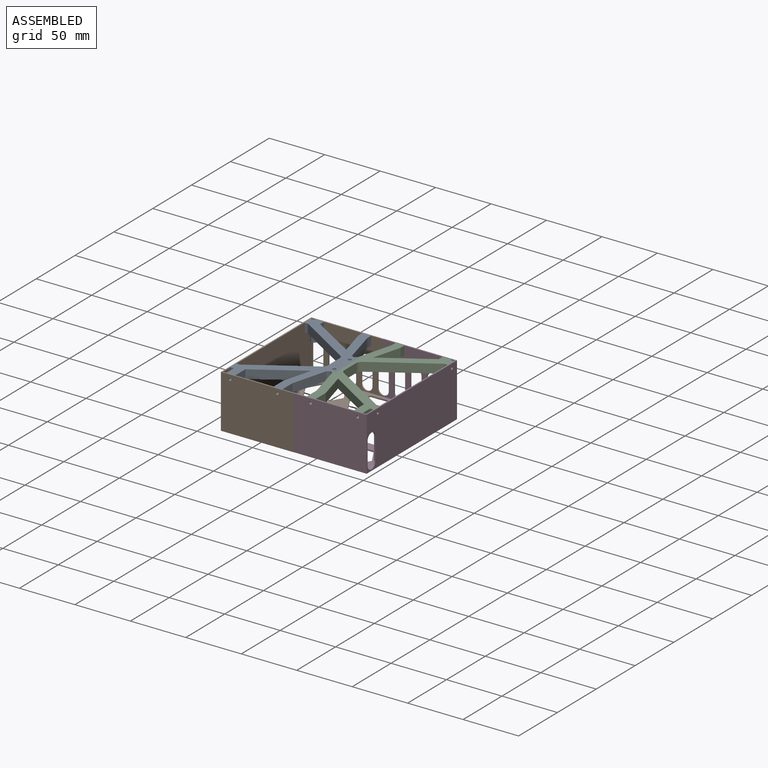
[diagram: assembled view]
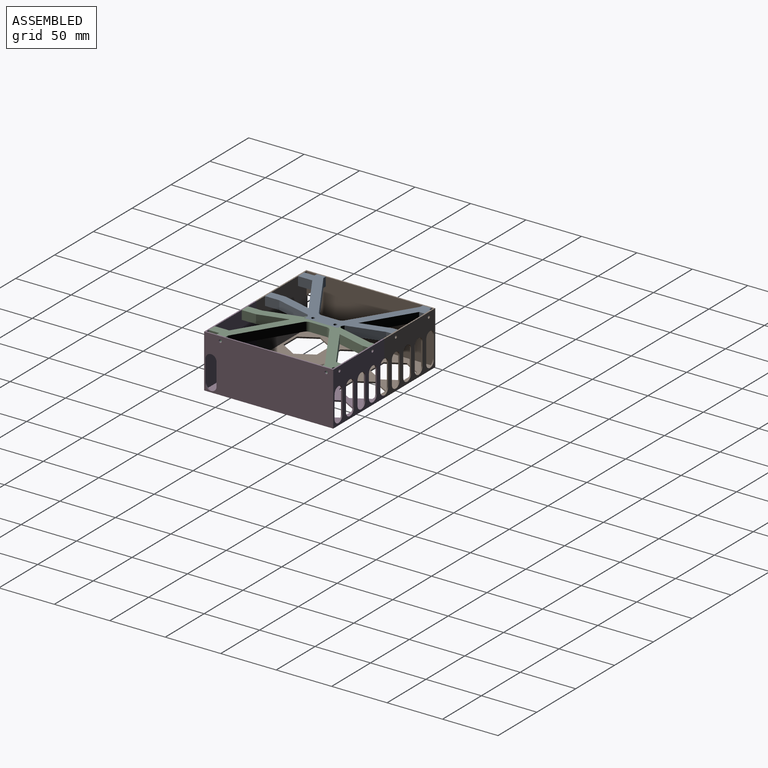
[diagram: assembled view, second angle]
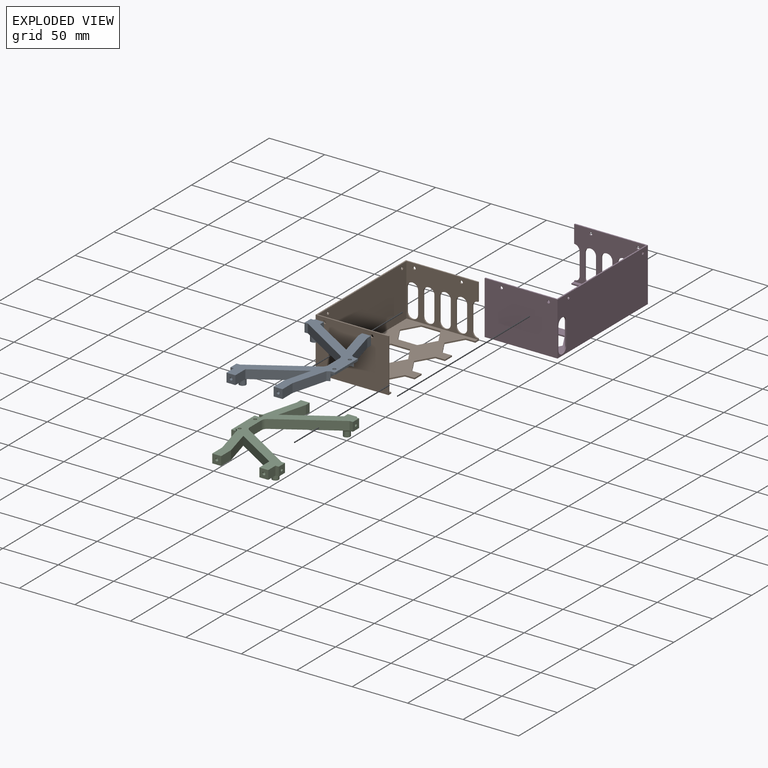
[diagram: exploded view]
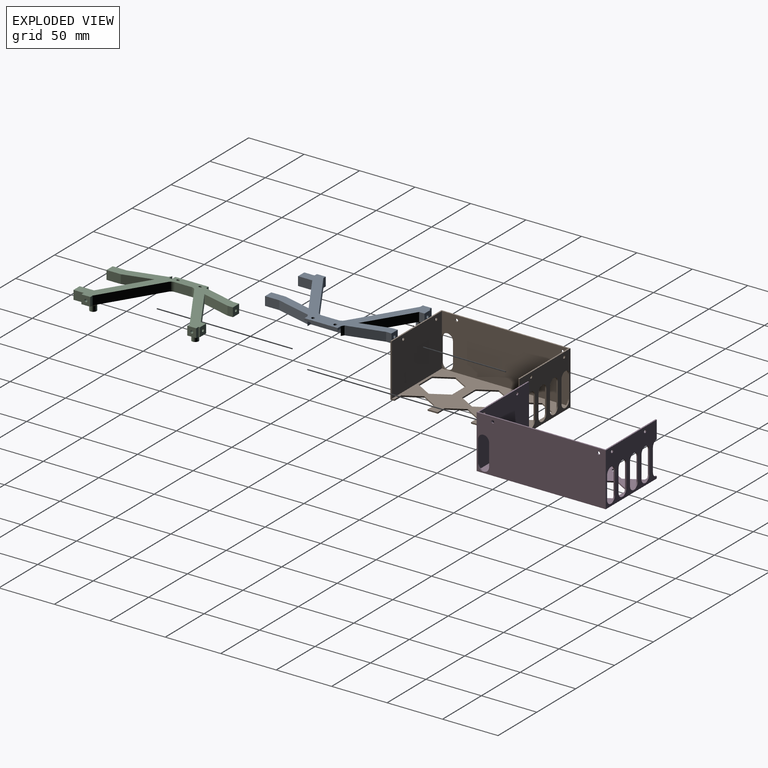
[diagram: exploded view, second angle]
ASSEMBLY  parts=4 mates=9
PART A: 69 faces, bbox 68.6x14.1x114.1 mm
  f0: cylinder r=1.3mm len=10mm, axis (0,-1,0), area 75.8mm2, adj f1,f2,f10,f62,f63,f64
  f1: cylinder r=1.3mm len=7mm, axis (1,0,0), area 51.6mm2, adj f0,f37,f60,f62,f63,f64
  f2: cylinder r=1.3mm len=3mm, axis (1,0,0), area 18.2mm2, adj f0,f59,f60,f62,f64
  f3: cone r=0mm half-angle=59deg, axis (0,-1,0), area 4.5mm2, adj f4,f56
  f4: cylinder r=1.3mm len=10mm, axis (0,-1,0), area 78.4mm2, adj f3,f12,f56
  f5: plane 30x8mm, normal (0,-1,0), area 225.9mm2, adj f7,f17,f49,f50,f51,f52,f53,f54
  f6: plane 114x68.5mm, normal (0,1,0), area 2133.5mm2, adj f7,f13,f14,f15,f16,f17,f18,f19
  f7: plane 4x2mm, normal (0,0,-1), area 8mm2, adj f5,f6,f18,f52
  f8: plane 114x64.5mm, normal (0,-1,0), area 1782.8mm2, adj f13,f14,f15,f16,f18,f19,f20,f21
  f9: cylinder r=3mm len=6mm, axis (0,1,0), area 84.8mm2, adj f10,f47,f48
  f10: plane 6x6mm, normal (0,-1,0), area 23mm2, adj f0,f9
  f11: cylinder r=3mm len=6mm, axis (0,1,0), area 84.8mm2, adj f12,f45,f46
  f12: plane 6x6mm, normal (0,-1,0), area 23mm2, adj f4,f11
  f13: plane 8x8mm, normal (0,0,1), area 58.7mm2, adj f6,f8,f14,f44,f66
  f14: plane 8x4.83mm, normal (-1,0,0), area 38.6mm2, adj f6,f8,f13,f15
  f15: plane 31.59x8.46mm, normal (-0.97,0,0.26), area 261.6mm2, adj f6,f8,f14,f16
  f16: plane 8x2.55mm, normal (-0.53,0,0.85), area 24mm2, adj f6,f8,f15,f17,f49
  f17: plane 4x2mm, normal (0,0,1), area 8mm2, adj f5,f6,f16,f52
  f18: plane 8x2.55mm, normal (-0.53,0,-0.85), area 24mm2, adj f6,f7,f8,f19,f50
  f19: plane 31.59x8.46mm, normal (-0.97,0,-0.26), area 261.6mm2, adj f6,f8,f18,f20
  f20: plane 12.83x8mm, normal (-1,0,0), area 102.6mm2, adj f6,f8,f19,f21
  f21: plane 8x8mm, normal (0,0,-1), area 58.7mm2, adj f6,f8,f20,f22,f58
  f22: plane 12.83x8mm, normal (1,0,0), area 102.6mm2, adj f6,f8,f21,f23
  f23: plane 25.64x8mm, normal (0.97,0,0.26), area 212.4mm2, adj f6,f8,f22,f24
  f24: plane 41.36x25.64mm, normal (-0.53,0,-0.85), area 389.3mm2, adj f6,f8,f23,f25
  f25: plane 12.83x8mm, normal (-1,0,0), area 102.6mm2, adj f6,f8,f24,f26
  f26: plane 8x8mm, normal (0,0,-1), area 58.7mm2, adj f6,f8,f25,f27,f68
  f27: plane 9.28x8mm, normal (1,0,0), area 74.3mm2, adj f6,f8,f26,f28
  f28: plane 8x3mm, normal (0,0,-1), area 24mm2, adj f6,f8,f27,f29
  f29: plane 8x8mm, normal (1,0,0), area 58.7mm2, adj f6,f8,f28,f30,f56
  f30: plane 8x3mm, normal (0,0,1), area 24mm2, adj f6,f8,f29,f31
  f31: plane 51.69x32.07mm, normal (0.53,0,0.85), area 486mm2, adj f6,f8,f30,f32,f46
  f32: cylinder r=5mm len=8mm, axis (0,1,0), area 40.6mm2, adj f6,f8,f31,f33
  f33: plane 14.91x8mm, normal (1,0,0), area 119.3mm2, adj f6,f8,f32,f34
  f34: cylinder r=5mm len=8mm, axis (0,1,0), area 40.6mm2, adj f6,f8,f33,f35
  f35: plane 51.69x32.07mm, normal (0.53,0,-0.85), area 486mm2, adj f6,f8,f34,f36,f48
  f36: plane 8x3mm, normal (0,0,-1), area 24mm2, adj f6,f8,f35,f37
  f37: plane 8x8mm, normal (1,0,0), area 58.7mm2, adj f1,f6,f8,f36,f38
  f38: plane 8x3mm, normal (0,0,1), area 24mm2, adj f6,f8,f37,f39
  f39: plane 8x1.28mm, normal (1,0,0), area 10.3mm2, adj f6,f8,f38,f40
  f40: plane 8x8mm, normal (0,0,1), area 58.7mm2, adj f6,f8,f39,f41,f60
  f41: plane 8x4.83mm, normal (-1,0,0), area 38.6mm2, adj f6,f8,f40,f42
  f42: plane 41.36x25.64mm, normal (-0.53,0,0.85), area 389.3mm2, adj f6,f8,f41,f43
  f43: plane 25.64x8mm, normal (0.97,0,-0.26), area 212.4mm2, adj f6,f8,f42,f44
  f44: plane 8x4.83mm, normal (1,0,0), area 38.6mm2, adj f6,f8,f13,f43
  f45: torus R=4.5mm, axis (0,-1,0), area 44.9mm2, adj f8,f11,f46
  f46: bspline ~4.19x3.38mm, area 6.3mm2, adj f11,f31,f45
  f47: torus R=4.5mm, axis (0,-1,0), area 44.9mm2, adj f8,f9,f48
  f48: bspline ~3.5x2.87mm, area 6.3mm2, adj f9,f35,f47
  f49: plane 6x4mm, normal (0,0,-1), area 24mm2, adj f5,f8,f16,f51
  f50: plane 6x4mm, normal (0,0,1), area 24mm2, adj f5,f8,f18,f51
  f51: plane 30x6mm, normal (-1,0,0), area 180mm2, adj f5,f8,f49,f50
  f52: plane 30x2mm, normal (-1,0,0), area 60mm2, adj f5,f6,f7,f17
  f53: cylinder r=1.5mm len=3mm, axis (0,-1,0), area 18.8mm2, adj f5,f6
  f54: cylinder r=1.5mm len=3mm, axis (0,-1,0), area 18.8mm2, adj f5,f6
  f55: cone r=0mm half-angle=59deg, axis (1,0,0), area 6.2mm2, adj f56
  f56: cylinder r=1.3mm len=10mm, axis (1,0,0), area 77.8mm2, adj f3,f4,f29,f55
  f57: cone r=0mm half-angle=59deg, axis (0,0,-1), area 6.2mm2, adj f58
  f58: cylinder r=1.3mm len=10mm, axis (0,0,-1), area 81.7mm2, adj f21,f57
  f59: cone r=0mm half-angle=59deg, axis (1,0,0), area 6.2mm2, adj f2
  f60: cylinder r=1.3mm len=5.28mm, axis (0,0,1), area 37.1mm2, adj f1,f2,f40
  f61: cone r=0mm half-angle=59deg, axis (0,0,1), area 6.2mm2, adj f62
  f62: cylinder r=1.3mm len=4.72mm, axis (0,0,1), area 24.9mm2, adj f0,f1,f2,f61,f63
  f63: cylinder r=1.3mm len=0.53mm, axis (0,0,1), area 0.1mm2, adj f0,f1,f62
  f64: cylinder r=1.3mm len=1.06mm, axis (0,0,1), area 0.3mm2, adj f0,f1,f2
  f65: cone r=0mm half-angle=59deg, axis (0,0,1), area 6.2mm2, adj f66
  f66: cylinder r=1.3mm len=10mm, axis (0,0,1), area 81.7mm2, adj f13,f65
  f67: cone r=0mm half-angle=59deg, axis (0,0,-1), area 6.2mm2, adj f68
  f68: cylinder r=1.3mm len=10mm, axis (0,0,-1), area 81.7mm2, adj f26,f67
PART B: 73 faces, bbox 65.7x48x116.4 mm
  f0: plane 4.67x2mm, normal (-1,0,0), area 6.6mm2, adj f1,f2,f9,f10,f31,f52
  f1: plane 64.5x46.8mm, normal (0,0,-1), area 1754.6mm2, adj f0,f3,f5,f9,f14,f48,f49,f50
  f2: plane 65.7x48mm, normal (0,0,1), area 1889.6mm2, adj f0,f4,f5,f10,f14,f48,f49,f50
  f3: plane 114x46.8mm, normal (-1,0,0), area 5040.7mm2, adj f1,f9,f11,f14,f45,f46,f47,f67
  f4: plane 116.4x48mm, normal (1,0,0), area 5298mm2, adj f2,f10,f11,f13,f14,f45,f46,f47
  f5: plane 16x1.2mm, normal (-1,0,0), area 19.2mm2, adj f1,f2,f14,f54
  f6: plane 9.08x1.2mm, normal (-1,0,0), area 10.9mm2, adj f9,f10,f28,f32
  f7: plane 9.08x1.2mm, normal (-1,0,0), area 10.9mm2, adj f9,f10,f24,f27
  f8: plane 48x3.58mm, normal (-1,0,0), area 60.4mm2, adj f9,f10,f11,f13,f14,f23
  f9: plane 114x64.5mm, normal (0,1,0), area 3845.6mm2, adj f0,f1,f3,f6,f7,f8,f11,f12
  f10: plane 116.4x65.7mm, normal (0,-1,0), area 4140.1mm2, adj f0,f2,f4,f6,f7,f8,f13,f15
  f11: plane 65.7x46.8mm, normal (0,0,1), area 3032mm2, adj f3,f4,f8,f9,f12,f14,f45,f47
  f12: plane 5x5mm, normal (-1,0,0), area 5.4mm2, adj f9,f11,f45
  f13: plane 65.7x48mm, normal (0,0,-1), area 3143mm2, adj f4,f8,f10,f14,f71,f72
  f14: plane 116.4x65.7mm, normal (0,1,0), area 294.5mm2, adj f1,f2,f3,f4,f5,f8,f11,f13
  f15: plane 15x8.66mm, normal (0.87,0,-0.5), area 20.8mm2, adj f9,f10,f16,f20
  f16: plane 15x8.66mm, normal (0.87,0,0.5), area 20.8mm2, adj f9,f10,f15,f17
  f17: plane 17.32x1.2mm, normal (0,0,1), area 20.8mm2, adj f9,f10,f16,f18
  f18: plane 15x8.66mm, normal (-0.87,0,0.5), area 20.8mm2, adj f9,f10,f17,f19
  f19: plane 15x8.66mm, normal (-0.87,0,-0.5), area 20.8mm2, adj f9,f10,f18,f20
  f20: plane 17.32x1.2mm, normal (0,0,-1), area 20.8mm2, adj f9,f10,f15,f19
  f21: plane 15x8.66mm, normal (-0.87,0,0.5), area 20.8mm2, adj f9,f10,f22,f23
  f22: plane 15x8.66mm, normal (-0.87,0,-0.5), area 20.8mm2, adj f9,f10,f21,f24
  f23: plane 8.66x1.2mm, normal (0,0,1), area 10.4mm2, adj f8,f9,f10,f21
  f24: plane 8.66x1.2mm, normal (0,0,-1), area 10.4mm2, adj f7,f9,f10,f22
  f25: plane 15x8.66mm, normal (-0.87,0,0.5), area 20.8mm2, adj f9,f10,f26,f27
  f26: plane 15x8.66mm, normal (-0.87,0,-0.5), area 20.8mm2, adj f9,f10,f25,f28
  f27: plane 8.66x1.2mm, normal (0,0,1), area 10.4mm2, adj f7,f9,f10,f25
  f28: plane 8.66x1.2mm, normal (0,0,-1), area 10.4mm2, adj f6,f9,f10,f26
  f29: plane 15x8.66mm, normal (-0.87,0,0.5), area 20.8mm2, adj f9,f10,f30,f32
  f30: plane 15x8.66mm, normal (-0.87,0,-0.5), area 20.8mm2, adj f9,f10,f29,f31
  f31: plane 8.66x1.2mm, normal (0,0,-1), area 10.4mm2, adj f0,f9,f10,f30
  f32: plane 8.66x1.2mm, normal (0,0,1), area 10.4mm2, adj f6,f9,f10,f29
  f33: plane 15x8.66mm, normal (0.87,0,-0.5), area 20.8mm2, adj f9,f10,f34,f38
  f34: plane 15x8.66mm, normal (0.87,0,0.5), area 20.8mm2, adj f9,f10,f33,f35
  f35: plane 17.32x1.2mm, normal (0,0,1), area 20.8mm2, adj f9,f10,f34,f36
  f36: plane 15x8.66mm, normal (-0.87,0,0.5), area 20.8mm2, adj f9,f10,f35,f37
  f37: plane 15x8.66mm, normal (-0.87,0,-0.5), area 20.8mm2, adj f9,f10,f36,f38
  f38: plane 17.32x1.2mm, normal (0,0,-1), area 20.8mm2, adj f9,f10,f33,f37
  f39: plane 15x8.66mm, normal (0.87,0,-0.5), area 20.8mm2, adj f9,f10,f40,f44
  f40: plane 15x8.66mm, normal (0.87,0,0.5), area 20.8mm2, adj f9,f10,f39,f41
  f41: plane 17.32x1.2mm, normal (0,0,1), area 20.8mm2, adj f9,f10,f40,f42
  f42: plane 15x8.66mm, normal (-0.87,0,0.5), area 20.8mm2, adj f9,f10,f41,f43
  f43: plane 15x8.66mm, normal (-0.87,0,-0.5), area 20.8mm2, adj f9,f10,f42,f44
  f44: plane 17.32x1.2mm, normal (0,0,-1), area 20.8mm2, adj f9,f10,f39,f43
  f45: cylinder r=5mm len=10mm, axis (-1,0,0), area 18.8mm2, adj f3,f4,f11,f12,f46
  f46: plane 20x1.2mm, normal (0,0,-1), area 24mm2, adj f3,f4,f45,f47
  f47: cylinder r=5mm len=10mm, axis (-1,0,0), area 18.8mm2, adj f3,f4,f11,f46
  f48: cylinder r=5mm len=10mm, axis (0,0,1), area 18.8mm2, adj f1,f2,f49,f51
  f49: plane 20x1.2mm, normal (1,0,0), area 24mm2, adj f1,f2,f48,f50
  f50: cylinder r=5mm len=10mm, axis (0,0,1), area 18.8mm2, adj f1,f2,f49,f51
  f51: plane 20x1.2mm, normal (-1,0,0), area 24mm2, adj f1,f2,f48,f50
  f52: cylinder r=5mm len=5mm, axis (0,0,1), area 9.4mm2, adj f0,f1,f2,f53
  f53: plane 20x1.2mm, normal (-1,0,0), area 24mm2, adj f1,f2,f52,f54
  f54: cylinder r=5mm len=5mm, axis (0,0,1), area 9.4mm2, adj f1,f2,f5,f53
  f55: cylinder r=5mm len=10mm, axis (0,0,1), area 18.8mm2, adj f1,f2,f56,f58
  f56: plane 20x1.2mm, normal (1,0,0), area 24mm2, adj f1,f2,f55,f57
  f57: cylinder r=5mm len=10mm, axis (0,0,1), area 18.8mm2, adj f1,f2,f56,f58
  f58: plane 20x1.2mm, normal (-1,0,0), area 24mm2, adj f1,f2,f55,f57
  f59: cylinder r=5mm len=10mm, axis (0,0,1), area 18.8mm2, adj f1,f2,f60,f62
  f60: plane 20x1.2mm, normal (1,0,0), area 24mm2, adj f1,f2,f59,f61
  f61: cylinder r=5mm len=10mm, axis (0,0,1), area 18.8mm2, adj f1,f2,f60,f62
  f62: plane 20x1.2mm, normal (-1,0,0), area 24mm2, adj f1,f2,f59,f61
  f63: cylinder r=5mm len=10mm, axis (0,0,1), area 18.8mm2, adj f1,f2,f64,f66
  f64: plane 20x1.2mm, normal (1,0,0), area 24mm2, adj f1,f2,f63,f65
  f65: cylinder r=5mm len=10mm, axis (0,0,1), area 18.8mm2, adj f1,f2,f64,f66
  f66: plane 20x1.2mm, normal (-1,0,0), area 24mm2, adj f1,f2,f63,f65
  f67: cylinder r=1.3mm len=2.6mm, axis (-1,0,0), area 9.8mm2, adj f3,f4
  f68: cylinder r=1.3mm len=2.6mm, axis (-1,0,0), area 9.8mm2, adj f3,f4
  f69: cylinder r=1.3mm len=2.6mm, axis (0,0,-1), area 9.8mm2, adj f1,f2
  f70: cylinder r=1.3mm len=2.6mm, axis (0,0,-1), area 9.8mm2, adj f1,f2
  f71: cylinder r=1.3mm len=2.6mm, axis (0,0,1), area 9.8mm2, adj f11,f13
  f72: cylinder r=1.3mm len=2.6mm, axis (0,0,1), area 9.8mm2, adj f11,f13
PART C: 73 faces, bbox 68.6x14.1x114.1 mm
  f0: plane 114x68.5mm, normal (0,-1,0), area 1966.2mm2, adj f8,f9,f15,f16,f17,f18,f19,f20
  f1: cylinder r=1.5mm len=3mm, axis (0,1,0), area 27.3mm2, adj f53,f72
  f2: cylinder r=1.5mm len=3mm, axis (0,1,0), area 27.3mm2, adj f53,f70
  f3: cylinder r=1.3mm len=10mm, axis (0,-1,0), area 75.8mm2, adj f4,f5,f12,f62,f63,f64
  f4: cylinder r=1.3mm len=7mm, axis (-1,0,0), area 51.6mm2, adj f3,f38,f60,f62,f63,f64
  f5: cylinder r=1.3mm len=3mm, axis (-1,0,0), area 18.2mm2, adj f3,f59,f60,f62,f64
  f6: cone r=0mm half-angle=59deg, axis (0,-1,0), area 4.5mm2, adj f7,f56
  f7: cylinder r=1.3mm len=10mm, axis (0,-1,0), area 78.4mm2, adj f6,f14,f56
  f8: plane 5.9x4mm, normal (0,0,1), area 23.6mm2, adj f0,f18,f53,f54
  f9: plane 5.9x4mm, normal (0,0,-1), area 23.6mm2, adj f0,f19,f53,f54
  f10: plane 114x64.5mm, normal (0,1,0), area 1907.6mm2, adj f15,f16,f17,f18,f19,f20,f21,f22
  f11: cylinder r=3mm len=6mm, axis (0,1,0), area 84.8mm2, adj f12,f48,f49
  f12: plane 6x6mm, normal (0,-1,0), area 23mm2, adj f3,f11
  f13: cylinder r=3mm len=6mm, axis (0,1,0), area 84.8mm2, adj f14,f46,f47
  f14: plane 6x6mm, normal (0,-1,0), area 23mm2, adj f7,f13
  f15: plane 8x8mm, normal (0,0,1), area 58.7mm2, adj f0,f10,f16,f45,f66
  f16: plane 8x4.83mm, normal (1,0,0), area 38.6mm2, adj f0,f10,f15,f17
  f17: plane 31.59x8.46mm, normal (0.97,0,0.26), area 261.6mm2, adj f0,f10,f16,f18
  f18: plane 8x2.55mm, normal (0.53,0,0.85), area 24mm2, adj f0,f8,f10,f17,f51
  f19: plane 8x2.55mm, normal (0.53,0,-0.85), area 24mm2, adj f0,f9,f10,f20,f50
  f20: plane 31.59x8.46mm, normal (0.97,0,-0.26), area 261.6mm2, adj f0,f10,f19,f21
  f21: plane 12.83x8mm, normal (1,0,0), area 102.6mm2, adj f0,f10,f20,f22
  f22: plane 8x8mm, normal (0,0,-1), area 58.7mm2, adj f0,f10,f21,f23,f58
  f23: plane 12.83x8mm, normal (-1,0,0), area 102.6mm2, adj f0,f10,f22,f24
  f24: plane 25.64x8mm, normal (-0.97,0,0.26), area 212.4mm2, adj f0,f10,f23,f25
  f25: plane 41.36x25.64mm, normal (0.53,0,-0.85), area 389.3mm2, adj f0,f10,f24,f26
  f26: plane 12.83x8mm, normal (1,0,0), area 102.6mm2, adj f0,f10,f25,f27
  f27: plane 8x8mm, normal (0,0,-1), area 58.7mm2, adj f0,f10,f26,f28,f68
  f28: plane 9.28x8mm, normal (-1,0,0), area 74.3mm2, adj f0,f10,f27,f29
  f29: plane 8x3mm, normal (0,0,-1), area 24mm2, adj f0,f10,f28,f30
  f30: plane 8x8mm, normal (-1,0,0), area 58.7mm2, adj f0,f10,f29,f31,f56
  f31: plane 8x3mm, normal (0,0,1), area 24mm2, adj f0,f10,f30,f32
  f32: plane 51.69x32.07mm, normal (-0.53,0,0.85), area 486mm2, adj f0,f10,f31,f33,f47
  f33: cylinder r=5mm len=8mm, axis (0,1,0), area 40.6mm2, adj f0,f10,f32,f34
  f34: plane 14.91x8mm, normal (-1,0,0), area 119.3mm2, adj f0,f10,f33,f35
  f35: cylinder r=5mm len=8mm, axis (0,1,0), area 40.6mm2, adj f0,f10,f34,f36
  f36: plane 51.69x32.07mm, normal (-0.53,0,-0.85), area 486mm2, adj f0,f10,f35,f37,f49
  f37: plane 8x3mm, normal (0,0,-1), area 24mm2, adj f0,f10,f36,f38
  f38: plane 8x8mm, normal (-1,0,0), area 58.7mm2, adj f0,f4,f10,f37,f39
  f39: plane 8x3mm, normal (0,0,1), area 24mm2, adj f0,f10,f38,f40
  f40: plane 8x1.28mm, normal (-1,0,0), area 10.3mm2, adj f0,f10,f39,f41
  f41: plane 8x8mm, normal (0,0,1), area 58.7mm2, adj f0,f10,f40,f42,f60
  f42: plane 8x4.83mm, normal (1,0,0), area 38.6mm2, adj f0,f10,f41,f43
  f43: plane 41.36x25.64mm, normal (0.53,0,0.85), area 389.3mm2, adj f0,f10,f42,f44
  f44: plane 25.64x8mm, normal (-0.97,0,-0.26), area 212.4mm2, adj f0,f10,f43,f45
  f45: plane 8x4.83mm, normal (-1,0,0), area 38.6mm2, adj f0,f10,f15,f44
  f46: torus R=4.5mm, axis (0,-1,0), area 44.9mm2, adj f0,f13,f47
  f47: bspline ~4.19x3.38mm, area 6.3mm2, adj f13,f32,f46
  f48: torus R=4.5mm, axis (0,-1,0), area 44.9mm2, adj f0,f11,f49
  f49: bspline ~3.5x2.87mm, area 6.3mm2, adj f11,f36,f48
  f50: plane 4x2.1mm, normal (0,0,1), area 8.4mm2, adj f10,f19,f52,f53
  f51: plane 4x2.1mm, normal (0,0,-1), area 8.4mm2, adj f10,f18,f52,f53
  f52: plane 30x2.1mm, normal (1,0,0), area 63mm2, adj f10,f50,f51,f53
  f53: plane 30x8mm, normal (0,1,0), area 225.9mm2, adj f1,f2,f8,f9,f50,f51,f52,f54
  f54: plane 30x5.9mm, normal (1,0,0), area 177mm2, adj f0,f8,f9,f53
  f55: cone r=0mm half-angle=59deg, axis (-1,0,0), area 6.2mm2, adj f56
  f56: cylinder r=1.3mm len=10mm, axis (-1,0,0), area 77.8mm2, adj f6,f7,f30,f55
  f57: cone r=0mm half-angle=59deg, axis (0,0,-1), area 6.2mm2, adj f58
  f58: cylinder r=1.3mm len=10mm, axis (0,0,-1), area 81.7mm2, adj f22,f57
  f59: cone r=0mm half-angle=59deg, axis (-1,0,0), area 6.2mm2, adj f5
  f60: cylinder r=1.3mm len=5.28mm, axis (0,0,1), area 37.1mm2, adj f4,f5,f41
  f61: cone r=0mm half-angle=59deg, axis (0,0,1), area 6.2mm2, adj f62
  f62: cylinder r=1.3mm len=4.72mm, axis (0,0,1), area 24.9mm2, adj f3,f4,f5,f61,f63
  f63: cylinder r=1.3mm len=0.53mm, axis (0,0,1), area 0.1mm2, adj f3,f4,f62
  f64: cylinder r=1.3mm len=1.06mm, axis (0,0,1), area 0.3mm2, adj f3,f4,f5
  f65: cone r=0mm half-angle=59deg, axis (0,0,1), area 6.2mm2, adj f66
  f66: cylinder r=1.3mm len=10mm, axis (0,0,1), area 81.7mm2, adj f15,f65
  f67: cone r=0mm half-angle=59deg, axis (0,0,-1), area 6.2mm2, adj f68
  f68: cylinder r=1.3mm len=10mm, axis (0,0,-1), area 81.7mm2, adj f27,f67
  f69: cylinder r=3mm len=6mm, axis (0,-1,0), area 56.5mm2, adj f0,f70
  f70: plane 6x6mm, normal (0,-1,0), area 21.2mm2, adj f2,f69
  f71: cylinder r=3mm len=6mm, axis (0,-1,0), area 56.5mm2, adj f0,f72
  f72: plane 6x6mm, normal (0,-1,0), area 21.2mm2, adj f1,f71
PART D: 73 faces, bbox 65.7x48x116.4 mm
  f0: plane 4.67x2mm, normal (1,0,0), area 6.6mm2, adj f1,f2,f9,f10,f31,f52
  f1: plane 64.5x46.8mm, normal (0,0,-1), area 1754.6mm2, adj f0,f3,f5,f9,f14,f48,f49,f50
  f2: plane 65.7x48mm, normal (0,0,1), area 1889.6mm2, adj f0,f4,f5,f10,f14,f48,f49,f50
  f3: plane 114x46.8mm, normal (1,0,0), area 5040.7mm2, adj f1,f9,f11,f14,f45,f46,f47,f67
  f4: plane 116.4x48mm, normal (-1,0,0), area 5298mm2, adj f2,f10,f11,f13,f14,f45,f46,f47
  f5: plane 16x1.2mm, normal (1,0,0), area 19.2mm2, adj f1,f2,f14,f54
  f6: plane 9.08x1.2mm, normal (1,0,0), area 10.9mm2, adj f9,f10,f28,f32
  f7: plane 9.08x1.2mm, normal (1,0,0), area 10.9mm2, adj f9,f10,f24,f27
  f8: plane 48x3.58mm, normal (1,0,0), area 60.4mm2, adj f9,f10,f11,f13,f14,f23
  f9: plane 114x64.5mm, normal (0,1,0), area 3845.6mm2, adj f0,f1,f3,f6,f7,f8,f11,f12
  f10: plane 116.4x65.7mm, normal (0,-1,0), area 4140.1mm2, adj f0,f2,f4,f6,f7,f8,f13,f15
  f11: plane 65.7x46.8mm, normal (0,0,1), area 3032mm2, adj f3,f4,f8,f9,f12,f14,f45,f47
  f12: plane 5x5mm, normal (1,0,0), area 5.4mm2, adj f9,f11,f45
  f13: plane 65.7x48mm, normal (0,0,-1), area 3143mm2, adj f4,f8,f10,f14,f71,f72
  f14: plane 116.4x65.7mm, normal (0,1,0), area 294.5mm2, adj f1,f2,f3,f4,f5,f8,f11,f13
  f15: plane 15x8.66mm, normal (-0.87,0,-0.5), area 20.8mm2, adj f9,f10,f16,f20
  f16: plane 15x8.66mm, normal (-0.87,0,0.5), area 20.8mm2, adj f9,f10,f15,f17
  f17: plane 17.32x1.2mm, normal (0,0,1), area 20.8mm2, adj f9,f10,f16,f18
  f18: plane 15x8.66mm, normal (0.87,0,0.5), area 20.8mm2, adj f9,f10,f17,f19
  f19: plane 15x8.66mm, normal (0.87,0,-0.5), area 20.8mm2, adj f9,f10,f18,f20
  f20: plane 17.32x1.2mm, normal (0,0,-1), area 20.8mm2, adj f9,f10,f15,f19
  f21: plane 15x8.66mm, normal (0.87,0,0.5), area 20.8mm2, adj f9,f10,f22,f23
  f22: plane 15x8.66mm, normal (0.87,0,-0.5), area 20.8mm2, adj f9,f10,f21,f24
  f23: plane 8.66x1.2mm, normal (0,0,1), area 10.4mm2, adj f8,f9,f10,f21
  f24: plane 8.66x1.2mm, normal (0,0,-1), area 10.4mm2, adj f7,f9,f10,f22
  f25: plane 15x8.66mm, normal (0.87,0,0.5), area 20.8mm2, adj f9,f10,f26,f27
  f26: plane 15x8.66mm, normal (0.87,0,-0.5), area 20.8mm2, adj f9,f10,f25,f28
  f27: plane 8.66x1.2mm, normal (0,0,1), area 10.4mm2, adj f7,f9,f10,f25
  f28: plane 8.66x1.2mm, normal (0,0,-1), area 10.4mm2, adj f6,f9,f10,f26
  f29: plane 15x8.66mm, normal (0.87,0,0.5), area 20.8mm2, adj f9,f10,f30,f32
  f30: plane 15x8.66mm, normal (0.87,0,-0.5), area 20.8mm2, adj f9,f10,f29,f31
  f31: plane 8.66x1.2mm, normal (0,0,-1), area 10.4mm2, adj f0,f9,f10,f30
  f32: plane 8.66x1.2mm, normal (0,0,1), area 10.4mm2, adj f6,f9,f10,f29
  f33: plane 15x8.66mm, normal (-0.87,0,-0.5), area 20.8mm2, adj f9,f10,f34,f38
  f34: plane 15x8.66mm, normal (-0.87,0,0.5), area 20.8mm2, adj f9,f10,f33,f35
  f35: plane 17.32x1.2mm, normal (0,0,1), area 20.8mm2, adj f9,f10,f34,f36
  f36: plane 15x8.66mm, normal (0.87,0,0.5), area 20.8mm2, adj f9,f10,f35,f37
  f37: plane 15x8.66mm, normal (0.87,0,-0.5), area 20.8mm2, adj f9,f10,f36,f38
  f38: plane 17.32x1.2mm, normal (0,0,-1), area 20.8mm2, adj f9,f10,f33,f37
  f39: plane 15x8.66mm, normal (-0.87,0,-0.5), area 20.8mm2, adj f9,f10,f40,f44
  f40: plane 15x8.66mm, normal (-0.87,0,0.5), area 20.8mm2, adj f9,f10,f39,f41
  f41: plane 17.32x1.2mm, normal (0,0,1), area 20.8mm2, adj f9,f10,f40,f42
  f42: plane 15x8.66mm, normal (0.87,0,0.5), area 20.8mm2, adj f9,f10,f41,f43
  f43: plane 15x8.66mm, normal (0.87,0,-0.5), area 20.8mm2, adj f9,f10,f42,f44
  f44: plane 17.32x1.2mm, normal (0,0,-1), area 20.8mm2, adj f9,f10,f39,f43
  f45: cylinder r=5mm len=10mm, axis (1,0,0), area 18.8mm2, adj f3,f4,f11,f12,f46
  f46: plane 20x1.2mm, normal (0,0,-1), area 24mm2, adj f3,f4,f45,f47
  f47: cylinder r=5mm len=10mm, axis (1,0,0), area 18.8mm2, adj f3,f4,f11,f46
  f48: cylinder r=5mm len=10mm, axis (0,0,1), area 18.8mm2, adj f1,f2,f49,f51
  f49: plane 20x1.2mm, normal (-1,0,0), area 24mm2, adj f1,f2,f48,f50
  f50: cylinder r=5mm len=10mm, axis (0,0,1), area 18.8mm2, adj f1,f2,f49,f51
  f51: plane 20x1.2mm, normal (1,0,0), area 24mm2, adj f1,f2,f48,f50
  f52: cylinder r=5mm len=5mm, axis (0,0,1), area 9.4mm2, adj f0,f1,f2,f53
  f53: plane 20x1.2mm, normal (1,0,0), area 24mm2, adj f1,f2,f52,f54
  f54: cylinder r=5mm len=5mm, axis (0,0,1), area 9.4mm2, adj f1,f2,f5,f53
  f55: cylinder r=5mm len=10mm, axis (0,0,1), area 18.8mm2, adj f1,f2,f56,f58
  f56: plane 20x1.2mm, normal (-1,0,0), area 24mm2, adj f1,f2,f55,f57
  f57: cylinder r=5mm len=10mm, axis (0,0,1), area 18.8mm2, adj f1,f2,f56,f58
  f58: plane 20x1.2mm, normal (1,0,0), area 24mm2, adj f1,f2,f55,f57
  f59: cylinder r=5mm len=10mm, axis (0,0,1), area 18.8mm2, adj f1,f2,f60,f62
  f60: plane 20x1.2mm, normal (-1,0,0), area 24mm2, adj f1,f2,f59,f61
  f61: cylinder r=5mm len=10mm, axis (0,0,1), area 18.8mm2, adj f1,f2,f60,f62
  f62: plane 20x1.2mm, normal (1,0,0), area 24mm2, adj f1,f2,f59,f61
  f63: cylinder r=5mm len=10mm, axis (0,0,1), area 18.8mm2, adj f1,f2,f64,f66
  f64: plane 20x1.2mm, normal (-1,0,0), area 24mm2, adj f1,f2,f63,f65
  f65: cylinder r=5mm len=10mm, axis (0,0,1), area 18.8mm2, adj f1,f2,f64,f66
  f66: plane 20x1.2mm, normal (1,0,0), area 24mm2, adj f1,f2,f63,f65
  f67: cylinder r=1.3mm len=2.6mm, axis (1,0,0), area 9.8mm2, adj f3,f4
  f68: cylinder r=1.3mm len=2.6mm, axis (1,0,0), area 9.8mm2, adj f3,f4
  f69: cylinder r=1.3mm len=2.6mm, axis (0,0,-1), area 9.8mm2, adj f1,f2
  f70: cylinder r=1.3mm len=2.6mm, axis (0,0,-1), area 9.8mm2, adj f1,f2
  f71: cylinder r=1.3mm len=2.6mm, axis (0,0,1), area 9.8mm2, adj f11,f13
  f72: cylinder r=1.3mm len=2.6mm, axis (0,0,1), area 9.8mm2, adj f11,f13
PLACE A rot(axis=(0,0.71,0.71),180deg) t=(64.5,23.34,63.52)mm
PLACE B rot(axis=(0,-0.71,-0.71),180deg) t=(80.62,19.7,15.52)mm
PLACE C rot(axis=(0,0.71,0.71),180deg) t=(64.5,23.34,63.62)mm
PLACE D rot(axis=(0,0.71,0.71),180deg) t=(48.38,19.7,15.62)mm
MATE planar B.f11 <-> A.f60  axis (0,1,0) through (32,-37.66,39.99)mm
MATE planar D.f11 <-> C.f60  axis (0,1,0) through (97,-37.66,40.09)mm
MATE planar B.f14 <-> A.f6  axis (0,0,1) through (0,19.34,63.52)mm
MATE planar C.f8 <-> A.f49  axis (0,1,0) through (62.5,38.34,58.57)mm
MATE planar A.f51 <-> C.f54  axis (1,0,0) through (60.5,23.34,58.52)mm
MATE planar A.f5 <-> C.f53  axis (0,0,-1) through (64.5,23.34,61.52)mm
MATE planar B.f12 <-> A.f55  axis (1,0,0) through (0,-36.54,17.84)mm
MATE planar D.f3 <-> C.f55  axis (-1,0,0) through (129,22.27,40.67)mm
MATE cylindrical D.f70 <-> C.f57  axis (0,1,0) through (79.51,77.54,59.62)mm
